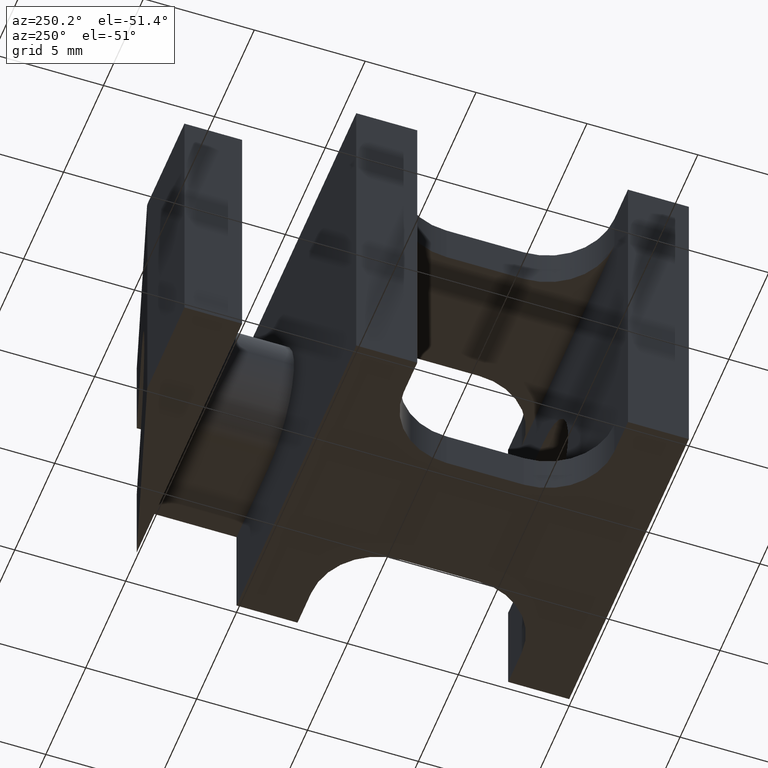
[diagram: clean part render]
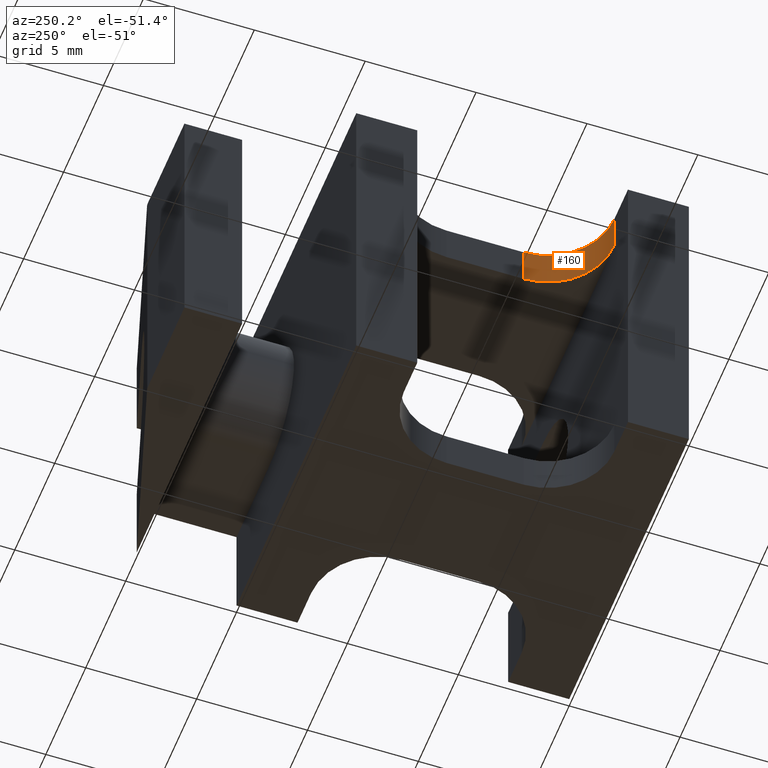
[diagram: same view with one face highlighted and labeled with its STEP entity id]
A machine part, auxiliary view. The second image highlights one B-rep face of the part: STEP entity #160.
In plain terms, the highlighted cylindrical surface (partial cylindrical patch) has radius 3 mm, axis along (0, 0, 1).
Its self-contained STEP definition (entity closure, byte-faithful):
#14 = EDGE_CURVE ( 'NONE', #668, #750, #1120, .T. ) ;
#23 = EDGE_CURVE ( 'NONE', #668, #692, #802, .T. ) ;
#35 = EDGE_CURVE ( 'NONE', #750, #744, #864, .T. ) ;
#43 = EDGE_CURVE ( 'NONE', #692, #744, #1158, .T. ) ;
#160 = ADVANCED_FACE ( 'NONE', ( #365 ), #383, .F. ) ;
#356 = CARTESIAN_POINT ( 'NONE',  ( 1.700000000000001500, 5.750000000000000900, -8.000000000000007100 ) ) ;
#357 = DIRECTION ( 'NONE',  ( 0.0000000000000000000, 0.0000000000000000000, 1.000000000000000000 ) ) ;
#358 = DIRECTION ( 'NONE',  ( 1.000000000000000000, 0.0000000000000000000, 0.0000000000000000000 ) ) ;
#365 = FACE_OUTER_BOUND ( 'NONE', #411, .T. ) ;
#383 = CYLINDRICAL_SURFACE ( 'NONE', #1309, 3.000000000000001300 ) ;
#411 = EDGE_LOOP ( 'NONE', ( #519, #497, #566, #491 ) ) ;
#491 = ORIENTED_EDGE ( 'NONE', *, *, #35, .T. ) ;
#497 = ORIENTED_EDGE ( 'NONE', *, *, #23, .F. ) ;
#519 = ORIENTED_EDGE ( 'NONE', *, *, #43, .F. ) ;
#566 = ORIENTED_EDGE ( 'NONE', *, *, #14, .T. ) ;
#668 = VERTEX_POINT ( 'NONE', #1468 ) ;
#692 = VERTEX_POINT ( 'NONE', #1471 ) ;
#744 = VERTEX_POINT ( 'NONE', #1380 ) ;
#750 = VERTEX_POINT ( 'NONE', #1335 ) ;
#790 = DIRECTION ( 'NONE',  ( 0.0000000000000000000, 0.0000000000000000000, 1.000000000000000000 ) ) ;
#791 = CARTESIAN_POINT ( 'NONE',  ( 1.700000000000001500, 5.750000000000000900, 15.80000000000000100 ) ) ;
#794 = DIRECTION ( 'NONE',  ( 1.000000000000000000, 0.0000000000000000000, 0.0000000000000000000 ) ) ;
#802 = LINE ( 'NONE', #823, #1129 ) ;
#823 = CARTESIAN_POINT ( 'NONE',  ( 1.700000000000000800, 2.750000000000000000, -8.000000000000007100 ) ) ;
#837 = DIRECTION ( 'NONE',  ( -0.0000000000000000000, -0.0000000000000000000, -1.000000000000000000 ) ) ;
#864 = LINE ( 'NONE', #898, #1182 ) ;
#879 = DIRECTION ( 'NONE',  ( 0.0000000000000000000, 0.0000000000000000000, 1.000000000000000000 ) ) ;
#880 = DIRECTION ( 'NONE',  ( 1.000000000000000000, 0.0000000000000000000, 0.0000000000000000000 ) ) ;
#891 = CARTESIAN_POINT ( 'NONE',  ( 1.700000000000001500, 5.750000000000000900, 13.99999999999999800 ) ) ;
#893 = DIRECTION ( 'NONE',  ( -0.0000000000000000000, -0.0000000000000000000, -1.000000000000000000 ) ) ;
#898 = CARTESIAN_POINT ( 'NONE',  ( 4.700000000000002800, 5.750000000000000900, -8.000000000000007100 ) ) ;
#1120 = CIRCLE ( 'NONE', #1122, 3.000000000000001300 ) ;
#1122 = AXIS2_PLACEMENT_3D ( 'NONE', #791, #790, #794 ) ;
#1129 = VECTOR ( 'NONE', #837, 1000.000000000000000 ) ;
#1158 = CIRCLE ( 'NONE', #1183, 3.000000000000001300 ) ;
#1182 = VECTOR ( 'NONE', #893, 1000.000000000000000 ) ;
#1183 = AXIS2_PLACEMENT_3D ( 'NONE', #891, #879, #880 ) ;
#1309 = AXIS2_PLACEMENT_3D ( 'NONE', #356, #357, #358 ) ;
#1335 = CARTESIAN_POINT ( 'NONE',  ( 4.700000000000002800, 5.750000000000001800, 15.80000000000000100 ) ) ;
#1380 = CARTESIAN_POINT ( 'NONE',  ( 4.700000000000002800, 5.750000000000001800, 14.00000000000000000 ) ) ;
#1468 = CARTESIAN_POINT ( 'NONE',  ( 1.700000000000001100, 2.750000000000000900, 15.80000000000000100 ) ) ;
#1471 = CARTESIAN_POINT ( 'NONE',  ( 1.700000000000001100, 2.750000000000000400, 13.99999999999999800 ) ) ;